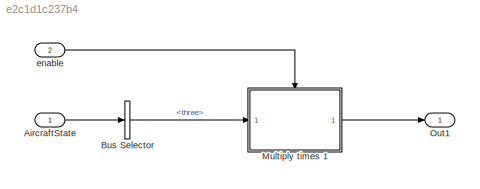
MODEL slx_e2c1d1c237b4
KIND model
CONFIG AbsTol = auto
CONFIG EnableMultiTasking = off
CONFIG FixedStep = 0.01
CONFIG MaxStep = auto
CONFIG MinStep = auto
CONFIG RelTol = 1e-3
CONFIG SampleTimeConstraint = Unconstrained
CONFIG Solver = FixedStepDiscrete
CONFIG SolverName = FixedStepDiscrete
CONFIG StartTime = 0.0
CONFIG StopTime = 10.0
BLOCK [Inport] AircraftState
  IconDisplay = Port number
  OutDataTypeStr = Bus: INPUTS
BLOCK [BusSelector] Bus Selector
  OutputSignals = three
  Ports = [1, 1]
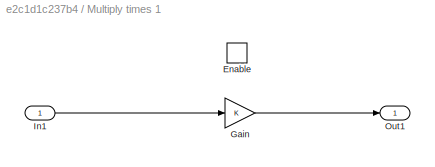
BLOCK [SubSystem] Multiply times 1
  Ports = [1, 1, 1]
  RequestExecContextInheritance = off
  Variant = off
BLOCK [EnablePort] Multiply times 1/Enable
  Ports = []
  StatesWhenEnabling = reset
BLOCK [Gain] Multiply times 1/Gain
  OutDataTypeStr = Inherit: Inherit via internal rule
  ParamDataTypeStr = Inherit: Inherit via internal rule
  SaturateOnIntegerOverflow = off
BLOCK [Inport] Multiply times 1/In1
  IconDisplay = Port number
BLOCK [Outport] Multiply times 1/Out1
  IconDisplay = Port number
BLOCK [Outport] Out1
  IconDisplay = Port number
BLOCK [Inport] enable
  IconDisplay = Port number
  OutDataTypeStr = boolean
  Port = 2
LINE AircraftState:1 -> Bus Selector:1
LINE Bus Selector:1 -> Multiply times 1:1
LINE Multiply times 1/Gain:1 -> Multiply times 1/Out1:1
LINE Multiply times 1/In1:1 -> Multiply times 1/Gain:1
LINE Multiply times 1:1 -> Out1:1
LINE enable:1 -> Multiply times 1:enable
